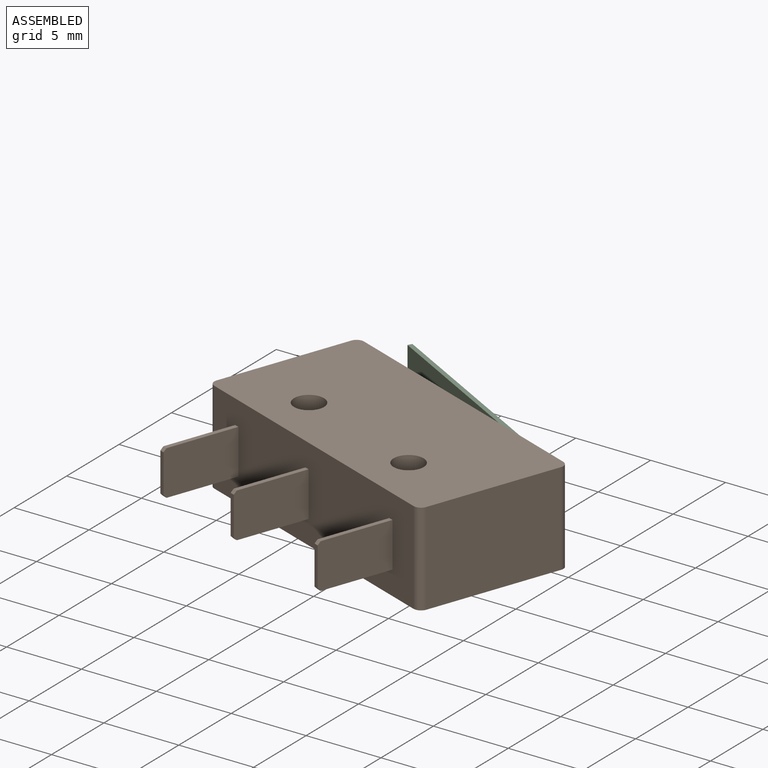
[diagram: assembled view]
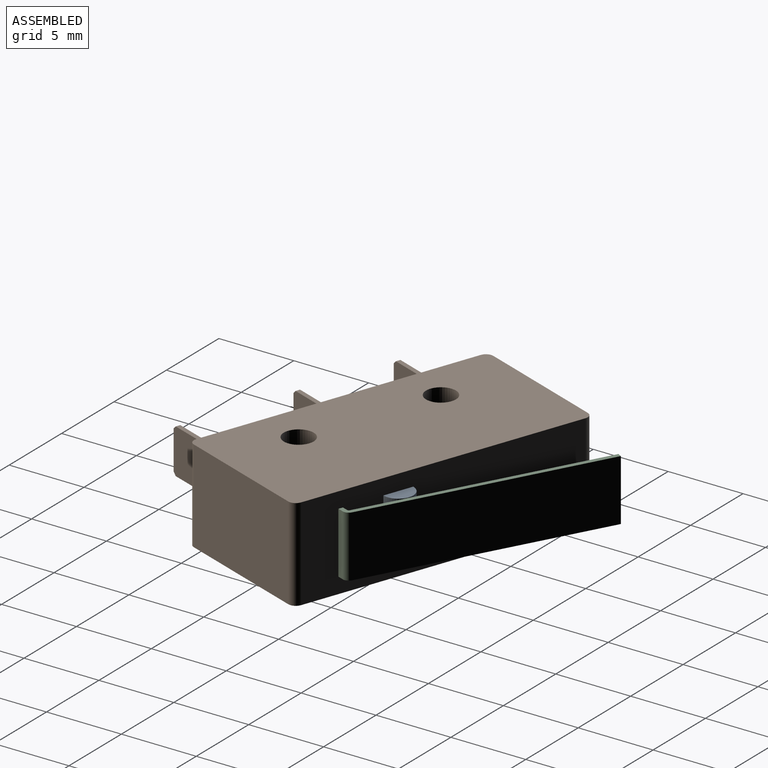
[diagram: assembled view, second angle]
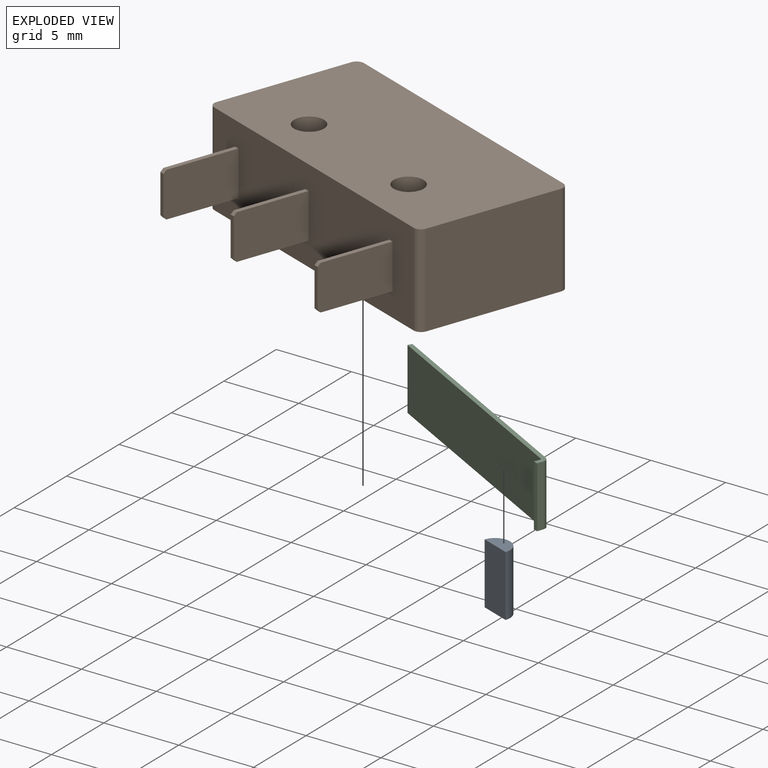
[diagram: exploded view]
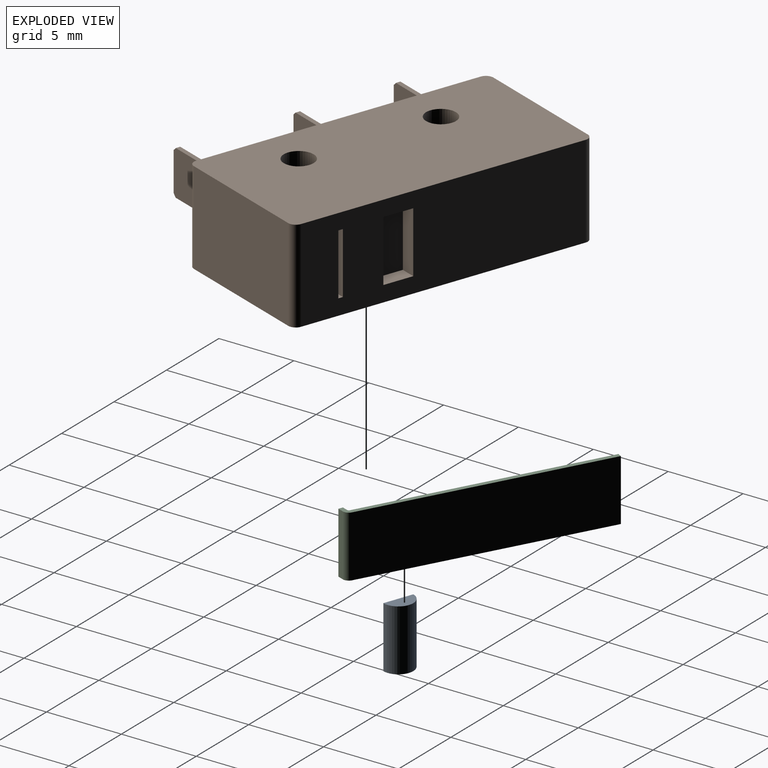
[diagram: exploded view, second angle]
ASSEMBLY  parts=3 mates=2
PART A: 4 faces, bbox 2x1x4.1 mm
  f0: plane 2x1mm, normal (0,0,-1), area 1.6mm2, adj f2,f3
  f1: plane 2x1mm, normal (0,0,1), area 1.6mm2, adj f2,f3
  f2: plane 4.1x2mm, normal (0,-1,0), area 8.2mm2, adj f0,f1,f3
  f3: cylinder r=1mm len=4.1mm, axis (0,0,1), area 12.9mm2, adj f0,f1,f2
PART B: 43 faces, bbox 20x15x6.2 mm
  f0: plane 19x6.2mm, normal (0,-1,0), area 115.1mm2, adj f1,f2,f8,f9,f10,f11,f12,f13
  f1: cylinder r=0.5mm len=6.2mm, axis (0,0,-1), area 4.9mm2, adj f0,f7,f8,f9
  f2: cylinder r=0.5mm len=6.2mm, axis (0,0,-1), area 4.9mm2, adj f0,f3,f8,f9
  f3: plane 9x6.2mm, normal (1,0,0), area 55.8mm2, adj f2,f4,f8,f9
  f4: cylinder r=0.5mm len=6.2mm, axis (0,0,-1), area 4.9mm2, adj f3,f5,f8,f9
  f5: plane 19x6.2mm, normal (0,1,0), area 108.4mm2, adj f4,f6,f8,f9,f31,f32,f33,f34
  f6: cylinder r=0.5mm len=6.2mm, axis (0,0,-1), area 4.9mm2, adj f5,f7,f8,f9
  f7: plane 9x6.2mm, normal (-1,0,0), area 55.8mm2, adj f1,f6,f8,f9
  f8: plane 20x10mm, normal (0,0,1), area 193.5mm2, adj f0,f1,f2,f3,f4,f5,f6,f7
  f9: plane 20x10mm, normal (0,0,-1), area 193.5mm2, adj f0,f1,f2,f3,f4,f5,f6,f7
  f10: plane 5x3mm, normal (-1,0,0), area 15mm2, adj f0,f11,f13,f14,f27,f28
  f11: plane 4.8x0.3mm, normal (0,0,-1), area 1.4mm2, adj f0,f10,f12,f27
  f12: plane 5x3mm, normal (1,0,0), area 15mm2, adj f0,f11,f13,f14,f27,f28
  f13: plane 4.8x0.3mm, normal (0,0,1), area 1.4mm2, adj f0,f10,f12,f28
  f14: plane 2.6x0.3mm, normal (0,-1,0), area 0.8mm2, adj f10,f12,f27,f28
  f15: plane 5x3mm, normal (-1,0,0), area 15mm2, adj f0,f16,f18,f19,f29,f30
  f16: plane 4.8x0.3mm, normal (0,0,-1), area 1.4mm2, adj f0,f15,f17,f29
  f17: plane 5x3mm, normal (1,0,0), area 15mm2, adj f0,f16,f18,f19,f29,f30
  f18: plane 4.8x0.3mm, normal (0,0,1), area 1.4mm2, adj f0,f15,f17,f30
  f19: plane 2.6x0.3mm, normal (0,-1,0), area 0.8mm2, adj f15,f17,f29,f30
  f20: plane 5x3mm, normal (-1,0,0), area 15mm2, adj f0,f21,f23,f24,f25,f26
  f21: plane 4.8x0.3mm, normal (0,0,-1), area 1.4mm2, adj f0,f20,f22,f25
  f22: plane 5x3mm, normal (1,0,0), area 15mm2, adj f0,f21,f23,f24,f25,f26
  f23: plane 4.8x0.3mm, normal (0,0,1), area 1.4mm2, adj f0,f20,f22,f26
  f24: plane 2.6x0.3mm, normal (0,-1,0), area 0.8mm2, adj f20,f22,f25,f26
  f25: plane 0.3x0.2mm, normal (0,-0.71,-0.71), area 0.1mm2, adj f20,f21,f22,f24
  f26: plane 0.3x0.2mm, normal (0,-0.71,0.71), area 0.1mm2, adj f20,f22,f23,f24
  f27: plane 0.3x0.2mm, normal (0,-0.71,-0.71), area 0.1mm2, adj f10,f11,f12,f14
  f28: plane 0.3x0.2mm, normal (0,-0.71,0.71), area 0.1mm2, adj f10,f12,f13,f14
  f29: plane 0.3x0.2mm, normal (0,-0.71,-0.71), area 0.1mm2, adj f15,f16,f17,f19
  f30: plane 0.3x0.2mm, normal (0,-0.71,0.71), area 0.1mm2, adj f15,f17,f18,f19
  f31: plane 4.1x1mm, normal (-1,0,0), area 4.1mm2, adj f5,f32,f34,f35
  f32: plane 1x0.3mm, normal (0,0,1), area 0.3mm2, adj f5,f31,f33,f35
  f33: plane 4.1x1mm, normal (1,0,0), area 4.1mm2, adj f5,f32,f34,f35
  f34: plane 1x0.3mm, normal (0,0,-1), area 0.3mm2, adj f5,f31,f33,f35
  f35: plane 4.1x0.3mm, normal (0,1,0), area 1.2mm2, adj f31,f32,f33,f34
  f36: plane 4.1x1mm, normal (-1,0,0), area 4.1mm2, adj f5,f37,f39,f40
  f37: plane 2x1mm, normal (0,0,1), area 2mm2, adj f5,f36,f38,f40
  f38: plane 4.1x1mm, normal (1,0,0), area 4.1mm2, adj f5,f37,f39,f40
  f39: plane 2x1mm, normal (0,0,-1), area 2mm2, adj f5,f36,f38,f40
  f40: plane 4.1x2mm, normal (0,1,0), area 8.2mm2, adj f36,f37,f38,f39
  f41: cylinder r=1mm len=6.2mm, axis (0,0,-1), area 39mm2, adj f8,f9
  f42: cylinder r=1mm len=6.2mm, axis (0,0,-1), area 39mm2, adj f8,f9
PART C: 10 faces, bbox 16.6x3.3x4.1 mm
  f0: plane 4.1x0.3mm, normal (0,-1,0), area 1.2mm2, adj f2,f3,f4,f5
  f1: plane 4.1x0.3mm, normal (-0.99,0.15,0), area 1.2mm2, adj f3,f5,f8,f9
  f2: plane 4.1x0.41mm, normal (1,0,0), area 1.7mm2, adj f0,f3,f5,f6
  f3: plane 16.61x3.28mm, normal (0,0,-1), area 5.2mm2, adj f0,f1,f2,f4,f6,f7,f8,f9
  f4: plane 4.1x0.41mm, normal (-1,0,0), area 1.7mm2, adj f0,f3,f5,f7
  f5: plane 16.61x3.28mm, normal (0,0,1), area 5.2mm2, adj f0,f1,f2,f4,f6,f7,f8,f9
  f6: cylinder r=0.4mm len=4.1mm, axis (0,0,1), area 2.3mm2, adj f2,f3,f5,f8
  f7: cylinder r=0.1mm len=4.1mm, axis (0,0,1), area 0.6mm2, adj f3,f4,f5,f9
  f8: plane 16.23x4.1mm, normal (0.15,0.99,0), area 67.3mm2, adj f1,f3,f5,f6
  f9: plane 16.23x4.1mm, normal (-0.15,-0.99,0), area 67.3mm2, adj f1,f3,f5,f7
PLACE A rot(axis=(0,0,-1),20deg) t=(-10.43,-17.44,2.97)mm
PLACE B rot(axis=(0,0,-1),20deg) t=(-10.43,-17.44,2.97)mm
PLACE C rot(axis=(0,0,-1),20deg) t=(-10.43,-17.44,2.97)mm
MATE revolute C.f5 <-> B.f34  axis (0,0,1) through (-21.23,-48.36,8.12)mm
MATE slider A.f2 <-> B.f5  axis (-0.34,-0.94,0) through (-24.04,-47.34,6.07)mm
